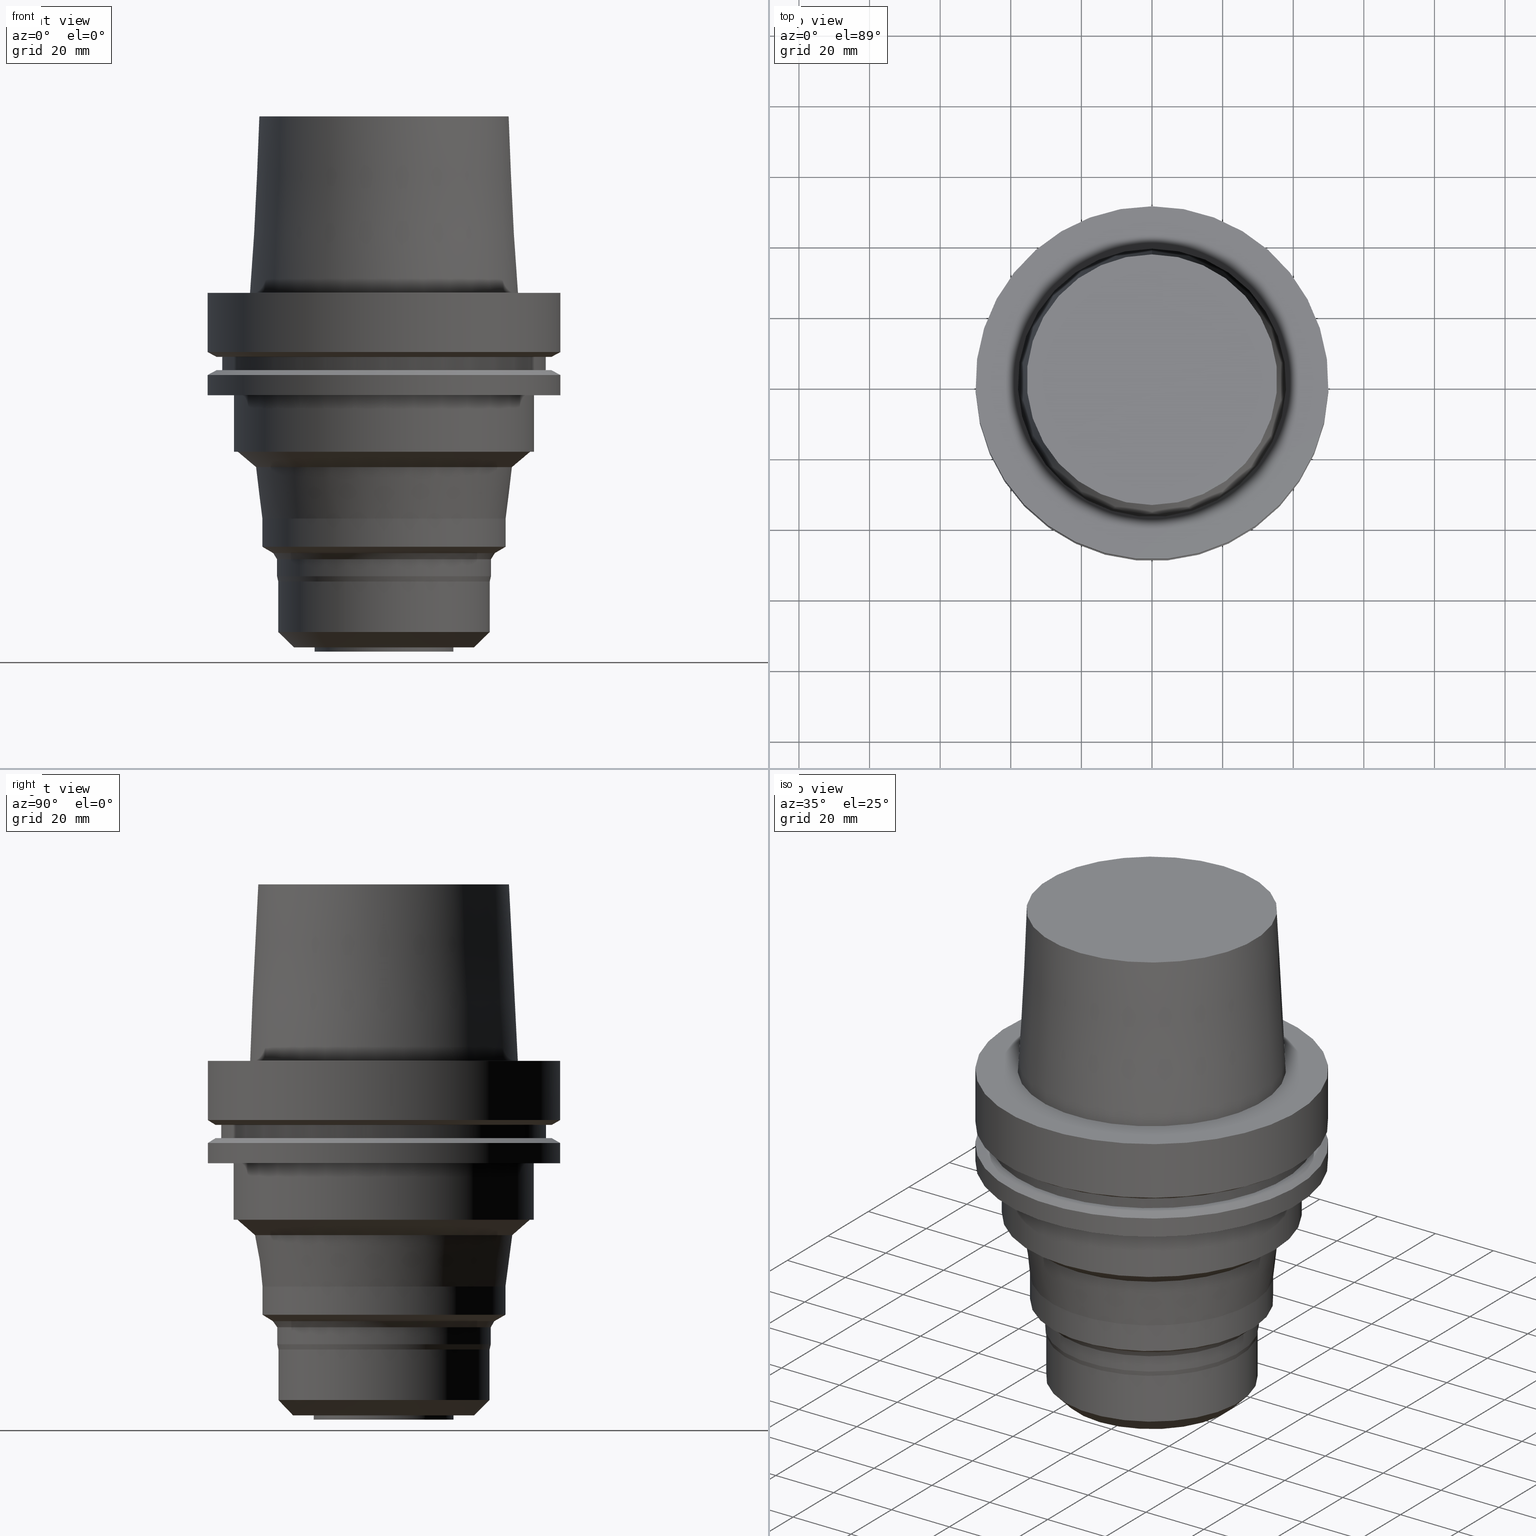
[diagram: canonical four-view strip — front | top / right | iso, engineering-drawing reading convention]
A machine part, canonical four-view strip (front | top / right | iso — engineering-drawing reading convention). The complete STEP part file that produces these views, byte-faithful:
ISO-10303-21;
HEADER;
FILE_DESCRIPTION((''),'1');
FILE_NAME('V:/90_\X2\53D65F9730C730FC30BF\X0\/00_\X2\6DE18DEF30C730FC30BF\X0\/ALL/HSK-BKUS\X2\52A05DE556F3\X0\_201801/HSK-A100-MEGADPG/HSK-A100-MEGA.750DPG-4.stp','2018-02-01T05:03:22',(''),(''),'Spatial Interop R21 SP3','Kubotek KeyCreator 2011 V10.0.2 (22737)',' ');
FILE_SCHEMA(('automotive_design'));
ENDSEC;
DATA;
#1=MECHANICAL_DESIGN_GEOMETRIC_PRESENTATION_REPRESENTATION(' ',(#10,#11,#12,#13,#14,#15,#16,#17,#18,#19,#20,#21,#22,#23,#24,#25,#26,#27,#28,#29,#30,#31,#32,#33,#34,#35,#36,#37,#38,#39,#40,#41,#42,#43,#44,#45,#46,#47,#48,#49,#50,#51,#52,#53,#54,#55,#56,#57,#58,#59),#6);
#2=PRODUCT_DEFINITION_CONTEXT('',#60,'design');
#3=APPLICATION_PROTOCOL_DEFINITION('INTERNATIONAL STANDARD','automotive_design',1994,#60);
#4=PRODUCT_CATEGORY_RELATIONSHIP('NONE','NONE',#61,#62);
#5=SHAPE_DEFINITION_REPRESENTATION(#63,#64);
#6= (GEOMETRIC_REPRESENTATION_CONTEXT(3)GLOBAL_UNCERTAINTY_ASSIGNED_CONTEXT((#67))GLOBAL_UNIT_ASSIGNED_CONTEXT((#69,#70,#71))REPRESENTATION_CONTEXT('NONE','WORKSPACE'));
#10=STYLED_ITEM('',(#73,#74),#75);
#11=STYLED_ITEM('',(#76,#77),#78);
#12=STYLED_ITEM('',(#79),#80);
#13=STYLED_ITEM('',(#81),#82);
#14=STYLED_ITEM('',(#83,#84),#85);
#15=STYLED_ITEM('',(#86,#87),#88);
#16=STYLED_ITEM('',(#89,#90),#91);
#17=STYLED_ITEM('',(#92),#93);
#18=STYLED_ITEM('',(#94,#95),#96);
#19=STYLED_ITEM('',(#97),#98);
#20=STYLED_ITEM('',(#99,#100),#101);
#21=STYLED_ITEM('',(#102,#103),#104);
#22=STYLED_ITEM('',(#105),#106);
#23=STYLED_ITEM('',(#107),#108);
#24=STYLED_ITEM('',(#109),#110);
#25=STYLED_ITEM('',(#111,#112),#113);
#26=STYLED_ITEM('',(#114),#115);
#27=STYLED_ITEM('',(#116,#117),#118);
#28=STYLED_ITEM('',(#119,#120),#121);
#29=STYLED_ITEM('',(#122,#123),#124);
#30=STYLED_ITEM('',(#125,#126),#127);
#31=STYLED_ITEM('',(#128,#129),#130);
#32=STYLED_ITEM('',(#131,#132),#133);
#33=STYLED_ITEM('',(#134),#135);
#34=STYLED_ITEM('',(#136,#137),#138);
#35=STYLED_ITEM('',(#139,#140),#141);
#36=STYLED_ITEM('',(#142),#143);
#37=STYLED_ITEM('',(#144),#145);
#38=STYLED_ITEM('',(#146),#147);
#39=STYLED_ITEM('',(#148,#149),#150);
#40=STYLED_ITEM('',(#151),#152);
#41=STYLED_ITEM('',(#153,#154),#155);
#42=STYLED_ITEM('',(#156),#157);
#43=STYLED_ITEM('',(#158),#159);
#44=STYLED_ITEM('',(#160),#161);
#45=STYLED_ITEM('',(#162),#163);
#46=STYLED_ITEM('',(#164),#165);
#47=STYLED_ITEM('',(#166),#167);
#48=STYLED_ITEM('',(#168,#169),#170);
#49=STYLED_ITEM('',(#171,#172),#173);
#50=STYLED_ITEM('',(#174,#175),#176);
#51=STYLED_ITEM('',(#177),#178);
#52=STYLED_ITEM('',(#179,#180),#181);
#53=STYLED_ITEM('',(#182),#183);
#54=STYLED_ITEM('',(#184),#185);
#55=STYLED_ITEM('',(#186,#187),#188);
#56=STYLED_ITEM('',(#189),#190);
#57=STYLED_ITEM('',(#191,#192),#193);
#58=STYLED_ITEM('',(#194),#195);
#59=STYLED_ITEM('',(#196,#197),#198);
#60=APPLICATION_CONTEXT(' ');
#61=PRODUCT_CATEGORY('part','NONE');
#62=PRODUCT_RELATED_PRODUCT_CATEGORY('detail',' ',(#199));
#63=PRODUCT_DEFINITION_SHAPE('NONE','NONE',#200);
#64=ADVANCED_BREP_SHAPE_REPRESENTATION('Unnamed[1]',(#193,#201),#6);
#67=UNCERTAINTY_MEASURE_WITH_UNIT(LENGTH_MEASURE(1.0E-006),#69,'','');
#69= (CONVERSION_BASED_UNIT('MILLIMETRE',#204)LENGTH_UNIT()NAMED_UNIT(#207));
#70= (NAMED_UNIT(#209)PLANE_ANGLE_UNIT()SI_UNIT($,.RADIAN.));
#71= (NAMED_UNIT(#209)SOLID_ANGLE_UNIT()SI_UNIT($,.STERADIAN.));
#73=PRESENTATION_STYLE_ASSIGNMENT((#215));
#74=PRESENTATION_STYLE_ASSIGNMENT((#216));
#75=ADVANCED_FACE('Unnamed[1]',(#217,#218),#219,.T.);
#76=PRESENTATION_STYLE_ASSIGNMENT((#220));
#77=PRESENTATION_STYLE_ASSIGNMENT((#221));
#78=ADVANCED_FACE('Unnamed[1]',(#222,#223),#224,.T.);
#79=PRESENTATION_STYLE_ASSIGNMENT((#225));
#80=EDGE_CURVE('Unnamed[1]',#226,#226,#227,.T.);
#81=PRESENTATION_STYLE_ASSIGNMENT((#228));
#82=EDGE_CURVE('Unnamed[1]',#229,#229,#230,.T.);
#83=PRESENTATION_STYLE_ASSIGNMENT((#231));
#84=PRESENTATION_STYLE_ASSIGNMENT((#232));
#85=ADVANCED_FACE('Unnamed[1]',(#233,#234),#235,.T.);
#86=PRESENTATION_STYLE_ASSIGNMENT((#236));
#87=PRESENTATION_STYLE_ASSIGNMENT((#237));
#88=ADVANCED_FACE('Unnamed[1]',(#238,#239),#240,.T.);
#89=PRESENTATION_STYLE_ASSIGNMENT((#241));
#90=PRESENTATION_STYLE_ASSIGNMENT((#242));
#91=ADVANCED_FACE('Unnamed[1]',(#243,#244),#245,.T.);
#92=PRESENTATION_STYLE_ASSIGNMENT((#246));
#93=EDGE_CURVE('Unnamed[1]',#247,#247,#248,.T.);
#94=PRESENTATION_STYLE_ASSIGNMENT((#249));
#95=PRESENTATION_STYLE_ASSIGNMENT((#250));
#96=ADVANCED_FACE('Unnamed[1]',(#251,#252),#253,.T.);
#97=PRESENTATION_STYLE_ASSIGNMENT((#254));
#98=EDGE_CURVE('Unnamed[1]',#255,#255,#256,.T.);
#99=PRESENTATION_STYLE_ASSIGNMENT((#257));
#100=PRESENTATION_STYLE_ASSIGNMENT((#258));
#101=ADVANCED_FACE('Unnamed[1]',(#259,#260),#261,.T.);
#102=PRESENTATION_STYLE_ASSIGNMENT((#262));
#103=PRESENTATION_STYLE_ASSIGNMENT((#263));
#104=ADVANCED_FACE('Unnamed[1]',(#264,#265),#266,.T.);
#105=PRESENTATION_STYLE_ASSIGNMENT((#267));
#106=EDGE_CURVE('Unnamed[1]',#268,#268,#269,.T.);
#107=PRESENTATION_STYLE_ASSIGNMENT((#270));
#108=EDGE_CURVE('Unnamed[1]',#271,#271,#272,.T.);
#109=PRESENTATION_STYLE_ASSIGNMENT((#273));
#110=EDGE_CURVE('Unnamed[1]',#274,#274,#275,.T.);
#111=PRESENTATION_STYLE_ASSIGNMENT((#276));
#112=PRESENTATION_STYLE_ASSIGNMENT((#277));
#113=ADVANCED_FACE('Unnamed[1]',(#278,#279),#280,.T.);
#114=PRESENTATION_STYLE_ASSIGNMENT((#281));
#115=EDGE_CURVE('Unnamed[1]',#282,#282,#283,.T.);
#116=PRESENTATION_STYLE_ASSIGNMENT((#284));
#117=PRESENTATION_STYLE_ASSIGNMENT((#285));
#118=ADVANCED_FACE('Unnamed[1]',(#286,#287),#288,.T.);
#119=PRESENTATION_STYLE_ASSIGNMENT((#289));
#120=PRESENTATION_STYLE_ASSIGNMENT((#290));
#121=ADVANCED_FACE('Unnamed[1]',(#291,#292),#293,.T.);
#122=PRESENTATION_STYLE_ASSIGNMENT((#294));
#123=PRESENTATION_STYLE_ASSIGNMENT((#295));
#124=ADVANCED_FACE('Unnamed[1]',(#296,#297),#298,.T.);
#125=PRESENTATION_STYLE_ASSIGNMENT((#299));
#126=PRESENTATION_STYLE_ASSIGNMENT((#300));
#127=ADVANCED_FACE('Unnamed[1]',(#301),#302,.T.);
#128=PRESENTATION_STYLE_ASSIGNMENT((#303));
#129=PRESENTATION_STYLE_ASSIGNMENT((#304));
#130=ADVANCED_FACE('Unnamed[1]',(#305,#306),#307,.T.);
#131=PRESENTATION_STYLE_ASSIGNMENT((#308));
#132=PRESENTATION_STYLE_ASSIGNMENT((#309));
#133=ADVANCED_FACE('Unnamed[1]',(#310,#311),#312,.T.);
#134=PRESENTATION_STYLE_ASSIGNMENT((#313));
#135=EDGE_CURVE('Unnamed[1]',#314,#314,#315,.T.);
#136=PRESENTATION_STYLE_ASSIGNMENT((#316));
#137=PRESENTATION_STYLE_ASSIGNMENT((#317));
#138=ADVANCED_FACE('Unnamed[1]',(#318,#319),#320,.T.);
#139=PRESENTATION_STYLE_ASSIGNMENT((#321));
#140=PRESENTATION_STYLE_ASSIGNMENT((#322));
#141=ADVANCED_FACE('Unnamed[1]',(#323,#324),#325,.T.);
#142=PRESENTATION_STYLE_ASSIGNMENT((#326));
#143=EDGE_CURVE('Unnamed[1]',#327,#327,#328,.T.);
#144=PRESENTATION_STYLE_ASSIGNMENT((#329));
#145=EDGE_CURVE('Unnamed[1]',#330,#330,#331,.T.);
#146=PRESENTATION_STYLE_ASSIGNMENT((#332));
#147=EDGE_CURVE('Unnamed[1]',#333,#333,#334,.T.);
#148=PRESENTATION_STYLE_ASSIGNMENT((#335));
#149=PRESENTATION_STYLE_ASSIGNMENT((#336));
#150=ADVANCED_FACE('Unnamed[1]',(#337,#338),#339,.T.);
#151=PRESENTATION_STYLE_ASSIGNMENT((#340));
#152=EDGE_CURVE('Unnamed[1]',#341,#341,#342,.T.);
#153=PRESENTATION_STYLE_ASSIGNMENT((#343));
#154=PRESENTATION_STYLE_ASSIGNMENT((#344));
#155=ADVANCED_FACE('Unnamed[1]',(#345,#346),#347,.T.);
#156=PRESENTATION_STYLE_ASSIGNMENT((#348));
#157=EDGE_CURVE('Unnamed[1]',#349,#349,#350,.T.);
#158=PRESENTATION_STYLE_ASSIGNMENT((#351));
#159=EDGE_CURVE('Unnamed[1]',#352,#352,#353,.T.);
#160=PRESENTATION_STYLE_ASSIGNMENT((#354));
#161=EDGE_CURVE('Unnamed[1]',#355,#355,#356,.T.);
#162=PRESENTATION_STYLE_ASSIGNMENT((#357));
#163=EDGE_CURVE('Unnamed[1]',#358,#358,#359,.T.);
#164=PRESENTATION_STYLE_ASSIGNMENT((#360));
#165=EDGE_CURVE('Unnamed[1]',#361,#361,#362,.T.);
#166=PRESENTATION_STYLE_ASSIGNMENT((#363));
#167=EDGE_CURVE('Unnamed[1]',#364,#364,#365,.T.);
#168=PRESENTATION_STYLE_ASSIGNMENT((#366));
#169=PRESENTATION_STYLE_ASSIGNMENT((#367));
#170=ADVANCED_FACE('Unnamed[1]',(#368,#369),#370,.T.);
#171=PRESENTATION_STYLE_ASSIGNMENT((#371));
#172=PRESENTATION_STYLE_ASSIGNMENT((#372));
#173=ADVANCED_FACE('Unnamed[1]',(#373,#374),#375,.T.);
#174=PRESENTATION_STYLE_ASSIGNMENT((#376));
#175=PRESENTATION_STYLE_ASSIGNMENT((#377));
#176=ADVANCED_FACE('Unnamed[1]',(#378,#379),#380,.T.);
#177=PRESENTATION_STYLE_ASSIGNMENT((#381));
#178=EDGE_CURVE('Unnamed[1]',#382,#382,#383,.T.);
#179=PRESENTATION_STYLE_ASSIGNMENT((#384));
#180=PRESENTATION_STYLE_ASSIGNMENT((#385));
#181=ADVANCED_FACE('Unnamed[1]',(#386),#387,.T.);
#182=PRESENTATION_STYLE_ASSIGNMENT((#388));
#183=EDGE_CURVE('Unnamed[1]',#389,#389,#390,.T.);
#184=PRESENTATION_STYLE_ASSIGNMENT((#391));
#185=EDGE_CURVE('Unnamed[1]',#392,#392,#393,.T.);
#186=PRESENTATION_STYLE_ASSIGNMENT((#394));
#187=PRESENTATION_STYLE_ASSIGNMENT((#395));
#188=ADVANCED_FACE('Unnamed[1]',(#396,#397),#398,.T.);
#189=PRESENTATION_STYLE_ASSIGNMENT((#399));
#190=EDGE_CURVE('Unnamed[1]',#400,#400,#401,.T.);
#191=PRESENTATION_STYLE_ASSIGNMENT((#402));
#192=PRESENTATION_STYLE_ASSIGNMENT((#403));
#193=MANIFOLD_SOLID_BREP('Unnamed[1]',#404);
#194=PRESENTATION_STYLE_ASSIGNMENT((#405));
#195=EDGE_CURVE('Unnamed[1]',#406,#406,#407,.T.);
#196=PRESENTATION_STYLE_ASSIGNMENT((#408));
#197=PRESENTATION_STYLE_ASSIGNMENT((#409));
#198=ADVANCED_FACE('Unnamed[1]',(#410,#411),#412,.T.);
#199=PRODUCT('Unnamed[1]','Unnamed[1]','PART-Unnamed[1]-DESC',(#413));
#200=PRODUCT_DEFINITION('NONE','NONE',#414,#2);
#201=AXIS2_PLACEMENT_3D('',#415,#416,#417);
#204=LENGTH_MEASURE_WITH_UNIT(LENGTH_MEASURE(1.0),#418);
#207=DIMENSIONAL_EXPONENTS(1.0,0.0,0.0,0.0,0.0,0.0,0.0);
#209=DIMENSIONAL_EXPONENTS(0.0,0.0,0.0,0.0,0.0,0.0,0.0);
#215=SURFACE_STYLE_USAGE(.BOTH.,#419);
#216=CURVE_STYLE('',#420,POSITIVE_LENGTH_MEASURE(1000.0),#421);
#217=FACE_OUTER_BOUND('',#422,.T.);
#218=FACE_BOUND('',#423,.T.);
#219=PLANE('',#424);
#220=SURFACE_STYLE_USAGE(.BOTH.,#425);
#221=CURVE_STYLE('',#426,POSITIVE_LENGTH_MEASURE(1000.0),#427);
#222=FACE_BOUND('',#428,.T.);
#223=FACE_BOUND('',#429,.T.);
#224=CONICAL_SURFACE('',#430,32.925,1.04719755119633);
#225=CURVE_STYLE('',#431,POSITIVE_LENGTH_MEASURE(1000.0),#432);
#226=VERTEX_POINT('',#433);
#227=CIRCLE('',#434,30.0);
#228=CURVE_STYLE('',#435,POSITIVE_LENGTH_MEASURE(1000.0),#436);
#229=VERTEX_POINT('',#437);
#230=CIRCLE('',#438,36.4253524534451);
#231=SURFACE_STYLE_USAGE(.BOTH.,#439);
#232=CURVE_STYLE('',#440,POSITIVE_LENGTH_MEASURE(1000.0),#441);
#233=FACE_BOUND('',#442,.T.);
#234=FACE_OUTER_BOUND('',#443,.T.);
#235=PLANE('',#444);
#236=SURFACE_STYLE_USAGE(.BOTH.,#445);
#237=CURVE_STYLE('',#446,POSITIVE_LENGTH_MEASURE(1000.0),#447);
#238=FACE_BOUND('',#448,.T.);
#239=FACE_BOUND('',#449,.T.);
#240=CONICAL_SURFACE('',#450,36.7499999999998,0.0499583957219389);
#241=SURFACE_STYLE_USAGE(.BOTH.,#451);
#242=CURVE_STYLE('',#452,POSITIVE_LENGTH_MEASURE(1000.0),#453);
#243=FACE_BOUND('',#454,.T.);
#244=FACE_BOUND('',#455,.T.);
#245=CONICAL_SURFACE('',#456,27.8275127018922,0.785398163397432);
#246=CURVE_STYLE('',#457,POSITIVE_LENGTH_MEASURE(1000.0),#458);
#247=VERTEX_POINT('',#459);
#248=CIRCLE('',#460,34.5);
#249=SURFACE_STYLE_USAGE(.BOTH.,#461);
#250=CURVE_STYLE('',#462,POSITIVE_LENGTH_MEASURE(1000.0),#463);
#251=FACE_BOUND('',#464,.T.);
#252=FACE_BOUND('',#465,.T.);
#253=CONICAL_SURFACE('',#466,48.8112976320959,1.04719755119659);
#254=CURVE_STYLE('',#467,POSITIVE_LENGTH_MEASURE(1000.0),#468);
#255=VERTEX_POINT('',#469);
#256=CIRCLE('',#470,30.3500000000004);
#257=SURFACE_STYLE_USAGE(.BOTH.,#471);
#258=CURVE_STYLE('',#472,POSITIVE_LENGTH_MEASURE(1000.0),#473);
#259=FACE_BOUND('',#474,.T.);
#260=FACE_BOUND('',#475,.T.);
#261=CYLINDRICAL_SURFACE('',#476,50.0000000000001);
#262=SURFACE_STYLE_USAGE(.BOTH.,#477);
#263=CURVE_STYLE('',#478,POSITIVE_LENGTH_MEASURE(1000.0),#479);
#264=FACE_BOUND('',#480,.T.);
#265=FACE_OUTER_BOUND('',#481,.T.);
#266=PLANE('',#482);
#267=CURVE_STYLE('',#483,POSITIVE_LENGTH_MEASURE(1000.0),#484);
#268=VERTEX_POINT('',#485);
#269=CIRCLE('',#486,50.0000000000001);
#270=CURVE_STYLE('',#487,POSITIVE_LENGTH_MEASURE(1000.0),#488);
#271=VERTEX_POINT('',#489);
#272=CIRCLE('',#490,19.7798076148762);
#273=CURVE_STYLE('',#491,POSITIVE_LENGTH_MEASURE(1000.0),#492);
#274=VERTEX_POINT('',#493);
#275=CIRCLE('',#494,35.4999999999999);
#276=SURFACE_STYLE_USAGE(.BOTH.,#495);
#277=CURVE_STYLE('',#496,POSITIVE_LENGTH_MEASURE(1000.0),#497);
#278=FACE_BOUND('',#498,.T.);
#279=FACE_BOUND('',#499,.T.);
#280=CYLINDRICAL_SURFACE('',#500,30.3500000000004);
#281=CURVE_STYLE('',#501,POSITIVE_LENGTH_MEASURE(1000.0),#502);
#282=VERTEX_POINT('',#503);
#283=CIRCLE('',#504,42.4999999999988);
#284=SURFACE_STYLE_USAGE(.BOTH.,#505);
#285=CURVE_STYLE('',#506,POSITIVE_LENGTH_MEASURE(1000.0),#507);
#286=FACE_BOUND('',#508,.T.);
#287=FACE_BOUND('',#509,.T.);
#288=CYLINDRICAL_SURFACE('',#510,42.4999999999991);
#289=SURFACE_STYLE_USAGE(.BOTH.,#511);
#290=CURVE_STYLE('',#512,POSITIVE_LENGTH_MEASURE(1000.0),#513);
#291=FACE_BOUND('',#514,.T.);
#292=FACE_BOUND('',#515,.T.);
#293=CYLINDRICAL_SURFACE('',#516,34.5);
#294=SURFACE_STYLE_USAGE(.BOTH.,#517);
#295=CURVE_STYLE('',#518,POSITIVE_LENGTH_MEASURE(1000.0),#519);
#296=FACE_BOUND('',#520,.T.);
#297=FACE_BOUND('',#521,.T.);
#298=CONICAL_SURFACE('',#522,30.8500000000002,0.523598775598161);
#299=SURFACE_STYLE_USAGE(.BOTH.,#523);
#300=CURVE_STYLE('',#524,POSITIVE_LENGTH_MEASURE(1000.0),#525);
#301=FACE_OUTER_BOUND('',#526,.T.);
#302=PLANE('',#527);
#303=SURFACE_STYLE_USAGE(.BOTH.,#528);
#304=CURVE_STYLE('',#529,POSITIVE_LENGTH_MEASURE(1000.0),#530);
#305=FACE_BOUND('',#531,.T.);
#306=FACE_BOUND('',#532,.T.);
#307=CONICAL_SURFACE('',#533,35.4626762267225,0.131511671319672);
#308=SURFACE_STYLE_USAGE(.BOTH.,#534);
#309=CURVE_STYLE('',#535,POSITIVE_LENGTH_MEASURE(1000.0),#536);
#310=FACE_BOUND('',#537,.T.);
#311=FACE_BOUND('',#538,.T.);
#312=CONICAL_SURFACE('',#539,48.8112976320959,1.04719755119658);
#313=CURVE_STYLE('',#540,POSITIVE_LENGTH_MEASURE(1000.0),#541);
#314=VERTEX_POINT('',#542);
#315=CIRCLE('',#543,46.0000000000001);
#316=SURFACE_STYLE_USAGE(.BOTH.,#544);
#317=CURVE_STYLE('',#545,POSITIVE_LENGTH_MEASURE(1000.0),#546);
#318=FACE_BOUND('',#547,.T.);
#319=FACE_BOUND('',#548,.T.);
#320=CYLINDRICAL_SURFACE('',#549,30.0);
#321=SURFACE_STYLE_USAGE(.BOTH.,#550);
#322=CURVE_STYLE('',#551,POSITIVE_LENGTH_MEASURE(1000.0),#552);
#323=FACE_OUTER_BOUND('',#553,.T.);
#324=FACE_BOUND('',#554,.T.);
#325=PLANE('',#555);
#326=CURVE_STYLE('',#556,POSITIVE_LENGTH_MEASURE(1000.0),#557);
#327=VERTEX_POINT('',#558);
#328=CIRCLE('',#559,30.0);
#329=CURVE_STYLE('',#560,POSITIVE_LENGTH_MEASURE(1000.0),#561);
#330=VERTEX_POINT('',#562);
#331=CIRCLE('',#563,47.6225952641917);
#332=CURVE_STYLE('',#564,POSITIVE_LENGTH_MEASURE(1000.0),#565);
#333=VERTEX_POINT('',#566);
#334=CIRCLE('',#567,19.7798076148762);
#335=SURFACE_STYLE_USAGE(.BOTH.,#568);
#336=CURVE_STYLE('',#569,POSITIVE_LENGTH_MEASURE(1000.0),#570);
#337=FACE_BOUND('',#571,.T.);
#338=FACE_BOUND('',#572,.T.);
#339=CYLINDRICAL_SURFACE('',#573,19.7798076148762);
#340=CURVE_STYLE('',#574,POSITIVE_LENGTH_MEASURE(1000.0),#575);
#341=VERTEX_POINT('',#576);
#342=CIRCLE('',#577,50.0000000000001);
#343=SURFACE_STYLE_USAGE(.BOTH.,#578);
#344=CURVE_STYLE('',#579,POSITIVE_LENGTH_MEASURE(1000.0),#580);
#345=FACE_BOUND('',#581,.T.);
#346=FACE_BOUND('',#582,.T.);
#347=CONICAL_SURFACE('',#583,30.1750000000002,0.229231933277035);
#348=CURVE_STYLE('',#584,POSITIVE_LENGTH_MEASURE(1000.0),#585);
#349=VERTEX_POINT('',#586);
#350=CIRCLE('',#587,50.0000000000001);
#351=CURVE_STYLE('',#588,POSITIVE_LENGTH_MEASURE(1000.0),#589);
#352=VERTEX_POINT('',#590);
#353=CIRCLE('',#591,50.0000000000001);
#354=CURVE_STYLE('',#592,POSITIVE_LENGTH_MEASURE(1000.0),#593);
#355=VERTEX_POINT('',#594);
#356=CIRCLE('',#595,34.5);
#357=CURVE_STYLE('',#596,POSITIVE_LENGTH_MEASURE(1000.0),#597);
#358=VERTEX_POINT('',#598);
#359=CIRCLE('',#599,31.3499999999999);
#360=CURVE_STYLE('',#600,POSITIVE_LENGTH_MEASURE(1000.0),#601);
#361=VERTEX_POINT('',#602);
#362=CIRCLE('',#603,42.4999999999994);
#363=CURVE_STYLE('',#604,POSITIVE_LENGTH_MEASURE(1000.0),#605);
#364=VERTEX_POINT('',#606);
#365=CIRCLE('',#607,47.6225952641917);
#366=SURFACE_STYLE_USAGE(.BOTH.,#608);
#367=CURVE_STYLE('',#609,POSITIVE_LENGTH_MEASURE(1000.0),#610);
#368=FACE_BOUND('',#611,.T.);
#369=FACE_BOUND('',#612,.T.);
#370=CYLINDRICAL_SURFACE('',#613,50.0000000000001);
#371=SURFACE_STYLE_USAGE(.BOTH.,#614);
#372=CURVE_STYLE('',#615,POSITIVE_LENGTH_MEASURE(1000.0),#616);
#373=FACE_BOUND('',#617,.T.);
#374=FACE_BOUND('',#618,.T.);
#375=CYLINDRICAL_SURFACE('',#619,46.0000000000001);
#376=SURFACE_STYLE_USAGE(.BOTH.,#620);
#377=CURVE_STYLE('',#621,POSITIVE_LENGTH_MEASURE(1000.0),#622);
#378=FACE_BOUND('',#623,.T.);
#379=FACE_OUTER_BOUND('',#624,.T.);
#380=PLANE('',#625);
#381=CURVE_STYLE('',#626,POSITIVE_LENGTH_MEASURE(1000.0),#627);
#382=VERTEX_POINT('',#628);
#383=CIRCLE('',#629,46.0000000000001);
#384=SURFACE_STYLE_USAGE(.BOTH.,#630);
#385=CURVE_STYLE('',#631,POSITIVE_LENGTH_MEASURE(1000.0),#632);
#386=FACE_OUTER_BOUND('',#633,.T.);
#387=PLANE('',#634);
#388=CURVE_STYLE('',#635,POSITIVE_LENGTH_MEASURE(1000.0),#636);
#389=VERTEX_POINT('',#637);
#390=CIRCLE('',#638,41.3821764366465);
#391=CURVE_STYLE('',#639,POSITIVE_LENGTH_MEASURE(1000.0),#640);
#392=VERTEX_POINT('',#641);
#393=CIRCLE('',#642,30.3500000000004);
#394=SURFACE_STYLE_USAGE(.BOTH.,#643);
#395=CURVE_STYLE('',#644,POSITIVE_LENGTH_MEASURE(1000.0),#645);
#396=FACE_BOUND('',#646,.T.);
#397=FACE_OUTER_BOUND('',#647,.T.);
#398=PLANE('',#648);
#399=CURVE_STYLE('',#649,POSITIVE_LENGTH_MEASURE(1000.0),#650);
#400=VERTEX_POINT('',#651);
#401=CIRCLE('',#652,25.6550254037845);
#402=SURFACE_STYLE_USAGE(.BOTH.,#653);
#403=CURVE_STYLE('',#654,POSITIVE_LENGTH_MEASURE(1000.0),#655);
#404=CLOSED_SHELL('',(#127,#88,#75,#170,#96,#85,#173,#141,#133,#101,#104,#118,#188,#198,#130,#121,#78,#124,#113,#155,#138,#91,#176,#150,#181));
#405=CURVE_STYLE('',#656,POSITIVE_LENGTH_MEASURE(1000.0),#657);
#406=VERTEX_POINT('',#658);
#407=CIRCLE('',#659,37.9999999999997);
#408=SURFACE_STYLE_USAGE(.BOTH.,#660);
#409=CURVE_STYLE('',#661,POSITIVE_LENGTH_MEASURE(1000.0),#662);
#410=FACE_BOUND('',#663,.T.);
#411=FACE_BOUND('',#664,.T.);
#412=CONICAL_SURFACE('',#665,38.9037644450458,0.851153999057289);
#413=PRODUCT_CONTEXT('',#60,'mechanical');
#414=PRODUCT_DEFINITION_FORMATION_WITH_SPECIFIED_SOURCE(' ','NONE',#199,.NOT_KNOWN.);
#415=CARTESIAN_POINT('',(0.0,0.0,0.0));
#416=DIRECTION('',(0.0,0.0,1.0));
#417=DIRECTION('',(1.0,0.0,0.0));
#418= (NAMED_UNIT(#207)LENGTH_UNIT()SI_UNIT(.MILLI.,.METRE.));
#419=SURFACE_SIDE_STYLE('',(#667));
#420=DRAUGHTING_PRE_DEFINED_CURVE_FONT('continuous');
#421=COLOUR_RGB('',0.0,1.0,0.0);
#422=EDGE_LOOP('',(#668));
#423=EDGE_LOOP('',(#669));
#424=AXIS2_PLACEMENT_3D('',#670,#671,#672);
#425=SURFACE_SIDE_STYLE('',(#673));
#426=DRAUGHTING_PRE_DEFINED_CURVE_FONT('continuous');
#427=COLOUR_RGB('',0.0,1.0,0.0);
#428=EDGE_LOOP('',(#674));
#429=EDGE_LOOP('',(#675));
#430=AXIS2_PLACEMENT_3D('',#676,#677,#678);
#431=DRAUGHTING_PRE_DEFINED_CURVE_FONT('continuous');
#432=COLOUR_RGB('',0.0,1.0,0.0);
#433=CARTESIAN_POINT('',(5.00549886215501E-015,30.0,-81.7460000000006));
#434=AXIS2_PLACEMENT_3D('',#679,#680,#681);
#435=DRAUGHTING_PRE_DEFINED_CURVE_FONT('continuous');
#436=COLOUR_RGB('',0.0,1.0,0.0);
#437=CARTESIAN_POINT('',(3.02146912336466E-015,36.4253524534451,-49.3443354519576));
#438=AXIS2_PLACEMENT_3D('',#682,#683,#684);
#439=SURFACE_SIDE_STYLE('',(#685));
#440=DRAUGHTING_PRE_DEFINED_CURVE_FONT('continuous');
#441=COLOUR_RGB('',0.0,1.0,0.0);
#442=EDGE_LOOP('',(#686));
#443=EDGE_LOOP('',(#687));
#444=AXIS2_PLACEMENT_3D('',#688,#689,#690);
#445=SURFACE_SIDE_STYLE('',(#691));
#446=DRAUGHTING_PRE_DEFINED_CURVE_FONT('continuous');
#447=COLOUR_RGB('',0.0,1.0,0.0);
#448=EDGE_LOOP('',(#692));
#449=EDGE_LOOP('',(#693));
#450=AXIS2_PLACEMENT_3D('',#694,#695,#696);
#451=SURFACE_SIDE_STYLE('',(#697));
#452=DRAUGHTING_PRE_DEFINED_CURVE_FONT('continuous');
#453=COLOUR_RGB('',0.0,1.0,0.0);
#454=EDGE_LOOP('',(#698));
#455=EDGE_LOOP('',(#699));
#456=AXIS2_PLACEMENT_3D('',#700,#701,#702);
#457=DRAUGHTING_PRE_DEFINED_CURVE_FONT('continuous');
#458=COLOUR_RGB('',0.0,1.0,0.0);
#459=CARTESIAN_POINT('',(3.91274652327585E-015,34.5,-63.900000000001));
#460=AXIS2_PLACEMENT_3D('',#703,#704,#705);
#461=SURFACE_SIDE_STYLE('',(#706));
#462=DRAUGHTING_PRE_DEFINED_CURVE_FONT('continuous');
#463=COLOUR_RGB('',0.0,1.0,0.0);
#464=EDGE_LOOP('',(#707));
#465=EDGE_LOOP('',(#708));
#466=AXIS2_PLACEMENT_3D('',#709,#710,#711);
#467=DRAUGHTING_PRE_DEFINED_CURVE_FONT('continuous');
#468=COLOUR_RGB('',0.0,1.0,0.0);
#469=CARTESIAN_POINT('',(4.62002316687333E-015,30.3500000000004,-75.450704155516));
#470=AXIS2_PLACEMENT_3D('',#712,#713,#714);
#471=SURFACE_SIDE_STYLE('',(#715));
#472=DRAUGHTING_PRE_DEFINED_CURVE_FONT('continuous');
#473=COLOUR_RGB('',0.0,1.0,0.0);
#474=EDGE_LOOP('',(#716));
#475=EDGE_LOOP('',(#717));
#476=AXIS2_PLACEMENT_3D('',#718,#719,#720);
#477=SURFACE_SIDE_STYLE('',(#721));
#478=DRAUGHTING_PRE_DEFINED_CURVE_FONT('continuous');
#479=COLOUR_RGB('',0.0,1.0,0.0);
#480=EDGE_LOOP('',(#722));
#481=EDGE_LOOP('',(#723));
#482=AXIS2_PLACEMENT_3D('',#724,#725,#726);
#483=DRAUGHTING_PRE_DEFINED_CURVE_FONT('continuous');
#484=COLOUR_RGB('',0.0,1.0,0.0);
#485=CARTESIAN_POINT('',(1.02578894188643E-015,50.0,-16.7524047358083));
#486=AXIS2_PLACEMENT_3D('',#727,#728,#729);
#487=DRAUGHTING_PRE_DEFINED_CURVE_FONT('continuous');
#488=COLOUR_RGB('',0.0,1.0,0.0);
#489=CARTESIAN_POINT('',(6.22120573966859E-015,19.7798076148763,-101.600000000001));
#490=AXIS2_PLACEMENT_3D('',#730,#731,#732);
#491=DRAUGHTING_PRE_DEFINED_CURVE_FONT('continuous');
#492=COLOUR_RGB('',0.0,1.0,0.0);
#493=CARTESIAN_POINT('',(-3.06161699786838E-015,35.4999999999998,50.0));
#494=AXIS2_PLACEMENT_3D('',#733,#734,#735);
#495=SURFACE_SIDE_STYLE('',(#736));
#496=DRAUGHTING_PRE_DEFINED_CURVE_FONT('continuous');
#497=COLOUR_RGB('',0.0,1.0,0.0);
#498=EDGE_LOOP('',(#737));
#499=EDGE_LOOP('',(#738));
#500=AXIS2_PLACEMENT_3D('',#739,#740,#741);
#501=DRAUGHTING_PRE_DEFINED_CURVE_FONT('continuous');
#502=COLOUR_RGB('',0.0,1.0,0.0);
#503=CARTESIAN_POINT('',(1.77573785876361E-015,42.4999999999987,-28.9999999999991));
#504=AXIS2_PLACEMENT_3D('',#742,#743,#744);
#505=SURFACE_SIDE_STYLE('',(#745));
#506=DRAUGHTING_PRE_DEFINED_CURVE_FONT('continuous');
#507=COLOUR_RGB('',0.0,1.0,0.0);
#508=EDGE_LOOP('',(#746));
#509=EDGE_LOOP('',(#747));
#510=AXIS2_PLACEMENT_3D('',#748,#749,#750);
#511=SURFACE_SIDE_STYLE('',(#751));
#512=DRAUGHTING_PRE_DEFINED_CURVE_FONT('continuous');
#513=COLOUR_RGB('',0.0,1.0,0.0);
#514=EDGE_LOOP('',(#752));
#515=EDGE_LOOP('',(#753));
#516=AXIS2_PLACEMENT_3D('',#754,#755,#756);
#517=SURFACE_SIDE_STYLE('',(#757));
#518=DRAUGHTING_PRE_DEFINED_CURVE_FONT('continuous');
#519=COLOUR_RGB('',0.0,1.0,0.0);
#520=EDGE_LOOP('',(#758));
#521=EDGE_LOOP('',(#759));
#522=AXIS2_PLACEMENT_3D('',#760,#761,#762);
#523=SURFACE_SIDE_STYLE('',(#763));
#524=DRAUGHTING_PRE_DEFINED_CURVE_FONT('continuous');
#525=COLOUR_RGB('',0.0,1.0,0.0);
#526=EDGE_LOOP('',(#764));
#527=AXIS2_PLACEMENT_3D('',#765,#766,#767);
#528=SURFACE_SIDE_STYLE('',(#768));
#529=DRAUGHTING_PRE_DEFINED_CURVE_FONT('continuous');
#530=COLOUR_RGB('',0.0,1.0,0.0);
#531=EDGE_LOOP('',(#769));
#532=EDGE_LOOP('',(#770));
#533=AXIS2_PLACEMENT_3D('',#771,#772,#773);
#534=SURFACE_SIDE_STYLE('',(#774));
#535=DRAUGHTING_PRE_DEFINED_CURVE_FONT('continuous');
#536=COLOUR_RGB('',0.0,1.0,0.0);
#537=EDGE_LOOP('',(#775));
#538=EDGE_LOOP('',(#776));
#539=AXIS2_PLACEMENT_3D('',#777,#778,#779);
#540=DRAUGHTING_PRE_DEFINED_CURVE_FONT('continuous');
#541=COLOUR_RGB('',0.0,1.0,0.0);
#542=CARTESIAN_POINT('',(1.10983616172727E-015,46.0,-18.1249999999997));
#543=AXIS2_PLACEMENT_3D('',#780,#781,#782);
#544=SURFACE_SIDE_STYLE('',(#783));
#545=DRAUGHTING_PRE_DEFINED_CURVE_FONT('continuous');
#546=COLOUR_RGB('',0.0,1.0,0.0);
#547=EDGE_LOOP('',(#784));
#548=EDGE_LOOP('',(#785));
#549=AXIS2_PLACEMENT_3D('',#786,#787,#788);
#550=SURFACE_SIDE_STYLE('',(#789));
#551=DRAUGHTING_PRE_DEFINED_CURVE_FONT('continuous');
#552=COLOUR_RGB('',0.0,1.0,0.0);
#553=EDGE_LOOP('',(#790));
#554=EDGE_LOOP('',(#791));
#555=AXIS2_PLACEMENT_3D('',#792,#793,#794);
#556=DRAUGHTING_PRE_DEFINED_CURVE_FONT('continuous');
#557=COLOUR_RGB('',0.0,1.0,0.0);
#558=CARTESIAN_POINT('',(5.88167397013809E-015,30.0,-96.055025403784));
#559=AXIS2_PLACEMENT_3D('',#795,#796,#797);
#560=DRAUGHTING_PRE_DEFINED_CURVE_FONT('continuous');
#561=COLOUR_RGB('',0.0,1.0,0.0);
#562=CARTESIAN_POINT('',(1.33945743656736E-015,47.6225952641917,-21.8749999999991));
#563=AXIS2_PLACEMENT_3D('',#798,#799,#800);
#564=DRAUGHTING_PRE_DEFINED_CURVE_FONT('continuous');
#565=COLOUR_RGB('',0.0,1.0,0.0);
#566=CARTESIAN_POINT('',(6.14772693171969E-015,19.7798076148763,-100.4));
#567=AXIS2_PLACEMENT_3D('',#801,#802,#803);
#568=SURFACE_SIDE_STYLE('',(#804));
#569=DRAUGHTING_PRE_DEFINED_CURVE_FONT('continuous');
#570=COLOUR_RGB('',0.0,1.0,0.0);
#571=EDGE_LOOP('',(#805));
#572=EDGE_LOOP('',(#806));
#573=AXIS2_PLACEMENT_3D('',#807,#808,#809);
#574=DRAUGHTING_PRE_DEFINED_CURVE_FONT('continuous');
#575=COLOUR_RGB('',0.0,1.0,0.0);
#576=CARTESIAN_POINT('',(-6.16297582203916E-031,50.0,6.12323399573677E-015));
#577=AXIS2_PLACEMENT_3D('',#810,#811,#812);
#578=SURFACE_SIDE_STYLE('',(#813));
#579=DRAUGHTING_PRE_DEFINED_CURVE_FONT('continuous');
#580=COLOUR_RGB('',0.0,1.0,0.0);
#581=EDGE_LOOP('',(#814));
#582=EDGE_LOOP('',(#815));
#583=AXIS2_PLACEMENT_3D('',#816,#817,#818);
#584=DRAUGHTING_PRE_DEFINED_CURVE_FONT('continuous');
#585=COLOUR_RGB('',0.0,1.0,0.0);
#586=CARTESIAN_POINT('',(1.77573785876361E-015,50.0,-28.9999999999991));
#587=AXIS2_PLACEMENT_3D('',#819,#820,#821);
#588=DRAUGHTING_PRE_DEFINED_CURVE_FONT('continuous');
#589=COLOUR_RGB('',0.0,1.0,0.0);
#590=CARTESIAN_POINT('',(1.42350465640822E-015,50.0,-23.2475952641907));
#591=AXIS2_PLACEMENT_3D('',#822,#823,#824);
#592=DRAUGHTING_PRE_DEFINED_CURVE_FONT('continuous');
#593=COLOUR_RGB('',0.0,1.0,0.0);
#594=CARTESIAN_POINT('',(4.40260524293466E-015,34.5,-71.8999999999988));
#595=AXIS2_PLACEMENT_3D('',#825,#826,#827);
#596=DRAUGHTING_PRE_DEFINED_CURVE_FONT('continuous');
#597=COLOUR_RGB('',0.0,1.0,0.0);
#598=CARTESIAN_POINT('',(4.51396564300085E-015,31.3499999999999,-73.7186533479474));
#599=AXIS2_PLACEMENT_3D('',#828,#829,#830);
#600=DRAUGHTING_PRE_DEFINED_CURVE_FONT('continuous');
#601=COLOUR_RGB('',0.0,1.0,0.0);
#602=CARTESIAN_POINT('',(2.75545529808156E-015,42.4999999999994,-45.0000000000002));
#603=AXIS2_PLACEMENT_3D('',#831,#832,#833);
#604=DRAUGHTING_PRE_DEFINED_CURVE_FONT('continuous');
#605=COLOUR_RGB('',0.0,1.0,0.0);
#606=CARTESIAN_POINT('',(1.10983616172729E-015,47.6225952641917,-18.125));
#607=AXIS2_PLACEMENT_3D('',#834,#835,#836);
#608=SURFACE_SIDE_STYLE('',(#837));
#609=DRAUGHTING_PRE_DEFINED_CURVE_FONT('continuous');
#610=COLOUR_RGB('',0.0,1.0,0.0);
#611=EDGE_LOOP('',(#838));
#612=EDGE_LOOP('',(#839));
#613=AXIS2_PLACEMENT_3D('',#840,#841,#842);
#614=SURFACE_SIDE_STYLE('',(#843));
#615=DRAUGHTING_PRE_DEFINED_CURVE_FONT('continuous');
#616=COLOUR_RGB('',0.0,1.0,0.0);
#617=EDGE_LOOP('',(#844));
#618=EDGE_LOOP('',(#845));
#619=AXIS2_PLACEMENT_3D('',#846,#847,#848);
#620=SURFACE_SIDE_STYLE('',(#849));
#621=DRAUGHTING_PRE_DEFINED_CURVE_FONT('continuous');
#622=COLOUR_RGB('',0.0,1.0,0.0);
#623=EDGE_LOOP('',(#850));
#624=EDGE_LOOP('',(#851));
#625=AXIS2_PLACEMENT_3D('',#852,#853,#854);
#626=DRAUGHTING_PRE_DEFINED_CURVE_FONT('continuous');
#627=COLOUR_RGB('',0.0,1.0,0.0);
#628=CARTESIAN_POINT('',(1.33945743656734E-015,46.0,-21.8749999999988));
#629=AXIS2_PLACEMENT_3D('',#855,#856,#857);
#630=SURFACE_SIDE_STYLE('',(#858));
#631=DRAUGHTING_PRE_DEFINED_CURVE_FONT('continuous');
#632=COLOUR_RGB('',0.0,1.0,0.0);
#633=EDGE_LOOP('',(#859));
#634=AXIS2_PLACEMENT_3D('',#860,#861,#862);
#635=DRAUGHTING_PRE_DEFINED_CURVE_FONT('continuous');
#636=COLOUR_RGB('',0.0,1.0,0.0);
#637=CARTESIAN_POINT('',(2.75545529808156E-015,41.3821764366465,-45.0000000000002));
#638=AXIS2_PLACEMENT_3D('',#863,#864,#865);
#639=DRAUGHTING_PRE_DEFINED_CURVE_FONT('continuous');
#640=COLOUR_RGB('',0.0,1.0,0.0);
#641=CARTESIAN_POINT('',(4.91365035221888E-015,30.3500000000004,-80.2459999999993));
#642=AXIS2_PLACEMENT_3D('',#866,#867,#868);
#643=SURFACE_SIDE_STYLE('',(#869));
#644=DRAUGHTING_PRE_DEFINED_CURVE_FONT('continuous');
#645=COLOUR_RGB('',0.0,1.0,0.0);
#646=EDGE_LOOP('',(#870));
#647=EDGE_LOOP('',(#871));
#648=AXIS2_PLACEMENT_3D('',#872,#873,#874);
#649=DRAUGHTING_PRE_DEFINED_CURVE_FONT('continuous');
#650=COLOUR_RGB('',0.0,1.0,0.0);
#651=CARTESIAN_POINT('',(6.14772693171969E-015,25.6550254037845,-100.4));
#652=AXIS2_PLACEMENT_3D('',#875,#876,#877);
#653=SURFACE_SIDE_STYLE('',(#878));
#654=DRAUGHTING_PRE_DEFINED_CURVE_FONT('continuous');
#655=COLOUR_RGB('',0.0,1.0,0.0);
#656=DRAUGHTING_PRE_DEFINED_CURVE_FONT('continuous');
#657=COLOUR_RGB('',0.0,1.0,0.0);
#658=CARTESIAN_POINT('',(-4.68386162474972E-031,37.9999999999997,4.6536578367599E-015));
#659=AXIS2_PLACEMENT_3D('',#879,#880,#881);
#660=SURFACE_SIDE_STYLE('',(#882));
#661=DRAUGHTING_PRE_DEFINED_CURVE_FONT('continuous');
#662=COLOUR_RGB('',0.0,1.0,0.0);
#663=EDGE_LOOP('',(#883));
#664=EDGE_LOOP('',(#884));
#665=AXIS2_PLACEMENT_3D('',#885,#886,#887);
#667=SURFACE_STYLE_FILL_AREA(#888);
#668=ORIENTED_EDGE('',*,*,#152,.F.);
#669=ORIENTED_EDGE('',*,*,#195,.T.);
#670=CARTESIAN_POINT('',(-5.42341872339444E-031,43.9999999999998,5.38844591624833E-015));
#671=DIRECTION('',(-6.12323399573677E-017,-1.22464679914735E-016,1.0));
#672=DIRECTION('',(1.23259516440783E-032,-1.0,-1.22464679914735E-016));
#673=SURFACE_STYLE_FILL_AREA(#889);
#674=ORIENTED_EDGE('',*,*,#163,.F.);
#675=ORIENTED_EDGE('',*,*,#161,.T.);
#676=CARTESIAN_POINT('',(4.45828544296776E-015,-5.68112313476959E-015,-72.8093266739731));
#677=DIRECTION('',(-6.12323399573677E-017,-5.75940563219809E-016,1.0));
#678=DIRECTION('',(-4.00933410930822E-032,1.0,5.75940563219809E-016));
#679=CARTESIAN_POINT('',(5.00549886215501E-015,-5.3413046606587E-016,-81.7460000000006));
#680=DIRECTION('',(6.12323399573676E-017,5.75940563219809E-016,-1.0));
#681=DIRECTION('',(-4.00933410930822E-032,1.0,5.75940563219809E-016));
#682=CARTESIAN_POINT('',(3.02146912336466E-015,-1.91955633951251E-014,-49.3443354519576));
#683=DIRECTION('',(6.12323399573677E-017,5.75940563219809E-016,-1.0));
#684=DIRECTION('',(-4.00933410930822E-032,1.0,5.75940563219809E-016));
#685=SURFACE_STYLE_FILL_AREA(#890);
#686=ORIENTED_EDGE('',*,*,#135,.F.);
#687=ORIENTED_EDGE('',*,*,#167,.T.);
#688=CARTESIAN_POINT('',(1.10983616172728E-015,46.8112976320959,-18.1249999999998));
#689=DIRECTION('',(6.12323399573677E-017,-1.8379767585366E-013,-1.0));
#690=DIRECTION('',(1.12495346185146E-029,1.0,-1.8379767585366E-013));
#691=SURFACE_STYLE_FILL_AREA(#891);
#692=ORIENTED_EDGE('',*,*,#195,.F.);
#693=ORIENTED_EDGE('',*,*,#110,.T.);
#694=CARTESIAN_POINT('',(-1.53080849893419E-015,-6.20134818275279E-014,25.0));
#695=DIRECTION('',(6.12323399573676E-017,5.75940563219809E-016,-1.0));
#696=DIRECTION('',(-4.00933410930822E-032,1.0,5.75940563219809E-016));
#697=SURFACE_STYLE_FILL_AREA(#892);
#698=ORIENTED_EDGE('',*,*,#190,.F.);
#699=ORIENTED_EDGE('',*,*,#143,.T.);
#700=CARTESIAN_POINT('',(6.01470045092889E-015,8.9582412421758E-015,-98.2275127018919));
#701=DIRECTION('',(-6.12323399573677E-017,-5.75940563219809E-016,1.0));
#702=DIRECTION('',(-4.00933410930822E-032,1.0,5.75940563219809E-016));
#703=CARTESIAN_POINT('',(3.91274652327585E-015,-1.08123657572864E-014,-63.900000000001));
#704=DIRECTION('',(6.12323399573676E-017,5.75940563219809E-016,-1.0));
#705=DIRECTION('',(-4.00933410930822E-032,1.0,5.75940563219809E-016));
#706=SURFACE_STYLE_FILL_AREA(#893);
#707=ORIENTED_EDGE('',*,*,#167,.F.);
#708=ORIENTED_EDGE('',*,*,#106,.T.);
#709=CARTESIAN_POINT('',(1.06781255180686E-015,-3.75713116834394E-014,-17.4387023679042));
#710=DIRECTION('',(-6.12323399573677E-017,-5.75940563219809E-016,1.0));
#711=DIRECTION('',(-4.00933410930822E-032,1.0,5.75940563219809E-016));
#712=CARTESIAN_POINT('',(4.62002316687333E-015,-4.15984670037367E-015,-75.450704155516));
#713=DIRECTION('',(6.12323399573677E-017,5.75940563219809E-016,-1.0));
#714=DIRECTION('',(-4.00933410930822E-032,1.0,5.75940563219809E-016));
#715=SURFACE_STYLE_FILL_AREA(#894);
#716=ORIENTED_EDGE('',*,*,#157,.F.);
#717=ORIENTED_EDGE('',*,*,#159,.T.);
#718=CARTESIAN_POINT('',(1.59962125758591E-015,-3.25692130253636E-014,-26.1237976320949));
#719=DIRECTION('',(6.12323399573677E-017,5.75940563219809E-016,-1.0));
#720=DIRECTION('',(-4.00933410930822E-032,1.0,5.75940563219809E-016));
#721=SURFACE_STYLE_FILL_AREA(#895);
#722=ORIENTED_EDGE('',*,*,#115,.F.);
#723=ORIENTED_EDGE('',*,*,#157,.T.);
#724=CARTESIAN_POINT('',(1.77573785876361E-015,46.2499999999994,-28.9999999999991));
#725=DIRECTION('',(6.12323399573677E-017,1.22464679914735E-016,-1.0));
#726=DIRECTION('',(-1.23259516440783E-032,1.0,1.22464679914735E-016));
#727=CARTESIAN_POINT('',(1.02578894188643E-015,-3.79665783282051E-014,-16.7524047358084));
#728=DIRECTION('',(6.12323399573677E-017,5.75940563219809E-016,-1.0));
#729=DIRECTION('',(-4.00933410930822E-032,1.0,5.75940563219809E-016));
#730=CARTESIAN_POINT('',(6.22120573966859E-015,1.09005934761002E-014,-101.600000000001));
#731=DIRECTION('',(6.12323399573677E-017,5.75940563219809E-016,-1.0));
#732=DIRECTION('',(-4.00933410930822E-032,1.0,5.75940563219809E-016));
#733=CARTESIAN_POINT('',(-3.06161699786838E-015,-7.64119959080231E-014,50.0));
#734=DIRECTION('',(6.12323399573677E-017,5.75940563219809E-016,-1.0));
#735=DIRECTION('',(-4.00933410930822E-032,1.0,5.75940563219809E-016));
#736=SURFACE_STYLE_FILL_AREA(#896);
#737=ORIENTED_EDGE('',*,*,#185,.F.);
#738=ORIENTED_EDGE('',*,*,#98,.T.);
#739=CARTESIAN_POINT('',(4.76683675954611E-015,-2.77894400563501E-015,-77.8483520777576));
#740=DIRECTION('',(6.12323399573677E-017,5.75940563219809E-016,-1.0));
#741=DIRECTION('',(-4.00933410930822E-032,1.0,5.75940563219809E-016));
#742=CARTESIAN_POINT('',(1.77573785876361E-015,-3.09126914136588E-014,-28.9999999999991));
#743=DIRECTION('',(6.12323399573677E-017,5.75940563219809E-016,-1.0));
#744=DIRECTION('',(-4.00933410930822E-032,1.0,5.75940563219809E-016));
#745=SURFACE_STYLE_FILL_AREA(#897);
#746=ORIENTED_EDGE('',*,*,#165,.F.);
#747=ORIENTED_EDGE('',*,*,#115,.T.);
#748=CARTESIAN_POINT('',(2.26559657842258E-015,-2.63051669079E-014,-36.9999999999996));
#749=DIRECTION('',(6.12323399573677E-017,5.75940563219809E-016,-1.0));
#750=DIRECTION('',(-4.00933410930822E-032,1.0,5.75940563219809E-016));
#751=SURFACE_STYLE_FILL_AREA(#898);
#752=ORIENTED_EDGE('',*,*,#161,.F.);
#753=ORIENTED_EDGE('',*,*,#93,.T.);
#754=CARTESIAN_POINT('',(4.15767588310526E-015,-8.50860350440775E-015,-67.8999999999999));
#755=DIRECTION('',(6.12323399573677E-017,5.75940563219809E-016,-1.0));
#756=DIRECTION('',(-4.00933410930822E-032,1.0,5.75940563219809E-016));
#757=SURFACE_STYLE_FILL_AREA(#899);
#758=ORIENTED_EDGE('',*,*,#98,.F.);
#759=ORIENTED_EDGE('',*,*,#163,.T.);
#760=CARTESIAN_POINT('',(4.56699440493709E-015,-4.65862585919186E-015,-74.5846787517317));
#761=DIRECTION('',(-6.12323399573677E-017,-5.75940563219809E-016,1.0));
#762=DIRECTION('',(-4.00933410930822E-032,1.0,5.75940563219809E-016));
#763=SURFACE_STYLE_FILL_AREA(#900);
#764=ORIENTED_EDGE('',*,*,#110,.F.);
#765=CARTESIAN_POINT('',(-3.06161699786838E-015,17.7499999999999,50.0));
#766=DIRECTION('',(-6.12323399573677E-017,-1.22464679914735E-016,1.0));
#767=DIRECTION('',(1.23259516440783E-032,-1.0,-1.22464679914735E-016));
#768=SURFACE_STYLE_FILL_AREA(#901);
#769=ORIENTED_EDGE('',*,*,#93,.F.);
#770=ORIENTED_EDGE('',*,*,#82,.T.);
#771=CARTESIAN_POINT('',(3.46710782332026E-015,-1.50039645762057E-014,-56.6221677259793));
#772=DIRECTION('',(-6.12323399573677E-017,-5.75940563219809E-016,1.0));
#773=DIRECTION('',(-4.00933410930822E-032,1.0,5.75940563219809E-016));
#774=SURFACE_STYLE_FILL_AREA(#902);
#775=ORIENTED_EDGE('',*,*,#159,.F.);
#776=ORIENTED_EDGE('',*,*,#145,.T.);
#777=CARTESIAN_POINT('',(1.38148104648779E-015,-3.46210012818342E-014,-22.5612976320949));
#778=DIRECTION('',(6.12323399573677E-017,5.75940563219809E-016,-1.0));
#779=DIRECTION('',(-4.00933410930822E-032,1.0,5.75940563219809E-016));
#780=CARTESIAN_POINT('',(1.10983616172727E-015,-3.71760450386739E-014,-18.1249999999997));
#781=DIRECTION('',(6.12323399573677E-017,5.75940563219809E-016,-1.0));
#782=DIRECTION('',(-4.00933410930822E-032,1.0,5.75940563219809E-016));
#783=SURFACE_STYLE_FILL_AREA(#903);
#784=ORIENTED_EDGE('',*,*,#143,.F.);
#785=ORIENTED_EDGE('',*,*,#80,.T.);
#786=CARTESIAN_POINT('',(5.44358641614655E-015,3.58644360902491E-015,-88.9005127018923));
#787=DIRECTION('',(6.12323399573677E-017,5.75940563219809E-016,-1.0));
#788=DIRECTION('',(-4.00933410930822E-032,1.0,5.75940563219809E-016));
#789=SURFACE_STYLE_FILL_AREA(#904);
#790=ORIENTED_EDGE('',*,*,#145,.F.);
#791=ORIENTED_EDGE('',*,*,#178,.T.);
#792=CARTESIAN_POINT('',(1.33945743656735E-015,46.8112976320959,-21.8749999999989));
#793=DIRECTION('',(-6.12323399573677E-017,1.72850048440947E-013,1.0));
#794=DIRECTION('',(-1.05791857750528E-029,-1.0,1.72850048440947E-013));
#795=CARTESIAN_POINT('',(5.88167397013809E-015,7.70701768411569E-015,-96.055025403784));
#796=DIRECTION('',(6.12323399573677E-017,5.75940563219809E-016,-1.0));
#797=DIRECTION('',(-4.00933410930822E-032,1.0,5.75940563219809E-016));
#798=CARTESIAN_POINT('',(1.33945743656736E-015,-3.50162679265999E-014,-21.8749999999991));
#799=DIRECTION('',(6.12323399573677E-017,5.75940563219809E-016,-1.0));
#800=DIRECTION('',(-4.00933410930822E-032,1.0,5.75940563219809E-016));
#801=CARTESIAN_POINT('',(6.1477269317197E-015,1.02094648002359E-014,-100.4));
#802=DIRECTION('',(6.12323399573677E-017,5.75940563219809E-016,-1.0));
#803=DIRECTION('',(-4.00933410930822E-032,1.0,5.75940563219809E-016));
#804=SURFACE_STYLE_FILL_AREA(#905);
#805=ORIENTED_EDGE('',*,*,#108,.F.);
#806=ORIENTED_EDGE('',*,*,#147,.T.);
#807=CARTESIAN_POINT('',(6.18446633569414E-015,1.0555029138168E-014,-101.0));
#808=DIRECTION('',(6.12323399573677E-017,5.75940563219809E-016,-1.0));
#809=DIRECTION('',(-4.00933410930822E-032,1.0,5.75940563219809E-016));
#810=CARTESIAN_POINT('',(1.74032777401202E-030,-4.76149677470327E-014,-2.8421709430404E-014));
#811=DIRECTION('',(6.12323399573677E-017,5.75940563219809E-016,-1.0));
#812=DIRECTION('',(-4.00933410930822E-032,1.0,5.75940563219809E-016));
#813=SURFACE_STYLE_FILL_AREA(#906);
#814=ORIENTED_EDGE('',*,*,#80,.F.);
#815=ORIENTED_EDGE('',*,*,#185,.T.);
#816=CARTESIAN_POINT('',(4.95957460718695E-015,-9.66085888481101E-016,-80.996));
#817=DIRECTION('',(-6.12323399573677E-017,-5.75940563219809E-016,1.0));
#818=DIRECTION('',(-4.00933410930822E-032,1.0,5.75940563219809E-016));
#819=CARTESIAN_POINT('',(1.77573785876361E-015,-3.09126914136588E-014,-28.9999999999991));
#820=DIRECTION('',(6.12323399573677E-017,5.75940563219809E-016,-1.0));
#821=DIRECTION('',(-4.00933410930822E-032,1.0,5.75940563219809E-016));
#822=CARTESIAN_POINT('',(1.42350465640822E-015,-3.42257346370685E-014,-23.2475952641908));
#823=DIRECTION('',(6.12323399573677E-017,5.75940563219809E-016,-1.0));
#824=DIRECTION('',(-4.00933410930822E-032,1.0,5.75940563219809E-016));
#825=CARTESIAN_POINT('',(4.40260524293466E-015,-6.20484125152912E-015,-71.8999999999989));
#826=DIRECTION('',(6.12323399573677E-017,5.75940563219809E-016,-1.0));
#827=DIRECTION('',(-4.00933410930822E-032,1.0,5.75940563219809E-016));
#828=CARTESIAN_POINT('',(4.51396564300085E-015,-5.15740501801006E-015,-73.7186533479474));
#829=DIRECTION('',(6.12323399573676E-017,5.75940563219809E-016,-1.0));
#830=DIRECTION('',(-4.00933410930822E-032,1.0,5.75940563219809E-016));
#831=CARTESIAN_POINT('',(2.75545529808156E-015,-2.16976424021412E-014,-45.0000000000002));
#832=DIRECTION('',(6.12323399573677E-017,5.75940563219809E-016,-1.0));
#833=DIRECTION('',(-4.00933410930822E-032,1.0,5.75940563219809E-016));
#834=CARTESIAN_POINT('',(1.10983616172729E-015,-3.71760450386737E-014,-18.125));
#835=DIRECTION('',(6.12323399573677E-017,5.75940563219809E-016,-1.0));
#836=DIRECTION('',(-4.00933410930822E-032,1.0,5.75940563219809E-016));
#837=SURFACE_STYLE_FILL_AREA(#907);
#838=ORIENTED_EDGE('',*,*,#106,.F.);
#839=ORIENTED_EDGE('',*,*,#152,.T.);
#840=CARTESIAN_POINT('',(5.12894470943218E-016,-4.27907730376189E-014,-8.3762023679042));
#841=DIRECTION('',(6.12323399573677E-017,5.75940563219809E-016,-1.0));
#842=DIRECTION('',(-4.00933410930822E-032,1.0,5.75940563219809E-016));
#843=SURFACE_STYLE_FILL_AREA(#908);
#844=ORIENTED_EDGE('',*,*,#178,.F.);
#845=ORIENTED_EDGE('',*,*,#135,.T.);
#846=CARTESIAN_POINT('',(1.22464679914731E-015,-3.6096156482637E-014,-19.9999999999993));
#847=DIRECTION('',(6.12323399573677E-017,5.75940563219809E-016,-1.0));
#848=DIRECTION('',(-4.00933410930822E-032,1.0,5.75940563219809E-016));
#849=SURFACE_STYLE_FILL_AREA(#909);
#850=ORIENTED_EDGE('',*,*,#147,.F.);
#851=ORIENTED_EDGE('',*,*,#190,.T.);
#852=CARTESIAN_POINT('',(6.14772693171969E-015,22.7174165093304,-100.4));
#853=DIRECTION('',(6.12323399573677E-017,1.22464679914735E-016,-1.0));
#854=DIRECTION('',(-1.23259516440783E-032,1.0,1.22464679914735E-016));
#855=CARTESIAN_POINT('',(1.33945743656735E-015,-3.50162679266001E-014,-21.8749999999988));
#856=DIRECTION('',(6.12323399573677E-017,5.75940563219809E-016,-1.0));
#857=DIRECTION('',(-4.00933410930822E-032,1.0,5.75940563219809E-016));
#858=SURFACE_STYLE_FILL_AREA(#910);
#859=ORIENTED_EDGE('',*,*,#108,.T.);
#860=CARTESIAN_POINT('',(6.22120573966857E-015,9.88990380743813,-101.6));
#861=DIRECTION('',(6.12323399573677E-017,-2.78971877193357E-014,-1.0));
#862=DIRECTION('',(1.70338292955409E-030,1.0,-2.78971877193357E-014));
#863=CARTESIAN_POINT('',(2.75545529808156E-015,-2.16976424021412E-014,-45.0000000000002));
#864=DIRECTION('',(6.12323399573676E-017,5.75940563219809E-016,-1.0));
#865=DIRECTION('',(-4.00933410930822E-032,1.0,5.75940563219809E-016));
#866=CARTESIAN_POINT('',(4.91365035221888E-015,-1.39804131089634E-015,-80.2459999999993));
#867=DIRECTION('',(6.12323399573677E-017,5.75940563219809E-016,-1.0));
#868=DIRECTION('',(-4.00933410930822E-032,1.0,5.75940563219809E-016));
#869=SURFACE_STYLE_FILL_AREA(#911);
#870=ORIENTED_EDGE('',*,*,#183,.F.);
#871=ORIENTED_EDGE('',*,*,#165,.T.);
#872=CARTESIAN_POINT('',(2.75545529808156E-015,41.9410882183229,-45.0000000000002));
#873=DIRECTION('',(6.12323399573677E-017,1.22464679914735E-016,-1.0));
#874=DIRECTION('',(-1.23259516440783E-032,1.0,1.22464679914735E-016));
#875=CARTESIAN_POINT('',(6.1477269317197E-015,1.02094648002359E-014,-100.4));
#876=DIRECTION('',(6.12323399573677E-017,5.75940563219809E-016,-1.0));
#877=DIRECTION('',(-4.00933410930822E-032,1.0,5.75940563219809E-016));
#878=SURFACE_STYLE_FILL_AREA(#912);
#879=CARTESIAN_POINT('',(8.70163887006011E-031,-4.76149677470327E-014,-1.4210854715202E-014));
#880=DIRECTION('',(6.12323399573677E-017,5.75940563219809E-016,-1.0));
#881=DIRECTION('',(-4.00933410930822E-032,1.0,5.75940563219809E-016));
#882=SURFACE_STYLE_FILL_AREA(#913);
#883=ORIENTED_EDGE('',*,*,#82,.F.);
#884=ORIENTED_EDGE('',*,*,#183,.T.);
#885=CARTESIAN_POINT('',(2.88846221072311E-015,-2.04466028986331E-014,-47.1721677259789));
#886=DIRECTION('',(-6.12323399573677E-017,-5.75940563219809E-016,1.0));
#887=DIRECTION('',(-4.00933410930822E-032,1.0,5.75940563219809E-016));
#888=FILL_AREA_STYLE('',(#914));
#889=FILL_AREA_STYLE('',(#915));
#890=FILL_AREA_STYLE('',(#916));
#891=FILL_AREA_STYLE('',(#917));
#892=FILL_AREA_STYLE('',(#918));
#893=FILL_AREA_STYLE('',(#919));
#894=FILL_AREA_STYLE('',(#920));
#895=FILL_AREA_STYLE('',(#921));
#896=FILL_AREA_STYLE('',(#922));
#897=FILL_AREA_STYLE('',(#923));
#898=FILL_AREA_STYLE('',(#924));
#899=FILL_AREA_STYLE('',(#925));
#900=FILL_AREA_STYLE('',(#926));
#901=FILL_AREA_STYLE('',(#927));
#902=FILL_AREA_STYLE('',(#928));
#903=FILL_AREA_STYLE('',(#929));
#904=FILL_AREA_STYLE('',(#930));
#905=FILL_AREA_STYLE('',(#931));
#906=FILL_AREA_STYLE('',(#932));
#907=FILL_AREA_STYLE('',(#933));
#908=FILL_AREA_STYLE('',(#934));
#909=FILL_AREA_STYLE('',(#935));
#910=FILL_AREA_STYLE('',(#936));
#911=FILL_AREA_STYLE('',(#937));
#912=FILL_AREA_STYLE('',(#938));
#913=FILL_AREA_STYLE('',(#939));
#914=FILL_AREA_STYLE_COLOUR('',#940);
#915=FILL_AREA_STYLE_COLOUR('',#941);
#916=FILL_AREA_STYLE_COLOUR('',#942);
#917=FILL_AREA_STYLE_COLOUR('',#943);
#918=FILL_AREA_STYLE_COLOUR('',#944);
#919=FILL_AREA_STYLE_COLOUR('',#945);
#920=FILL_AREA_STYLE_COLOUR('',#946);
#921=FILL_AREA_STYLE_COLOUR('',#947);
#922=FILL_AREA_STYLE_COLOUR('',#948);
#923=FILL_AREA_STYLE_COLOUR('',#949);
#924=FILL_AREA_STYLE_COLOUR('',#950);
#925=FILL_AREA_STYLE_COLOUR('',#951);
#926=FILL_AREA_STYLE_COLOUR('',#952);
#927=FILL_AREA_STYLE_COLOUR('',#953);
#928=FILL_AREA_STYLE_COLOUR('',#954);
#929=FILL_AREA_STYLE_COLOUR('',#955);
#930=FILL_AREA_STYLE_COLOUR('',#956);
#931=FILL_AREA_STYLE_COLOUR('',#957);
#932=FILL_AREA_STYLE_COLOUR('',#958);
#933=FILL_AREA_STYLE_COLOUR('',#959);
#934=FILL_AREA_STYLE_COLOUR('',#960);
#935=FILL_AREA_STYLE_COLOUR('',#961);
#936=FILL_AREA_STYLE_COLOUR('',#962);
#937=FILL_AREA_STYLE_COLOUR('',#963);
#938=FILL_AREA_STYLE_COLOUR('',#964);
#939=FILL_AREA_STYLE_COLOUR('',#965);
#940=COLOUR_RGB('',0.0,1.0,0.0);
#941=COLOUR_RGB('',0.0,1.0,0.0);
#942=COLOUR_RGB('',0.0,1.0,0.0);
#943=COLOUR_RGB('',0.0,1.0,0.0);
#944=COLOUR_RGB('',0.0,1.0,0.0);
#945=COLOUR_RGB('',0.0,1.0,0.0);
#946=COLOUR_RGB('',0.0,1.0,0.0);
#947=COLOUR_RGB('',0.0,1.0,0.0);
#948=COLOUR_RGB('',0.0,1.0,0.0);
#949=COLOUR_RGB('',0.0,1.0,0.0);
#950=COLOUR_RGB('',0.0,1.0,0.0);
#951=COLOUR_RGB('',0.0,1.0,0.0);
#952=COLOUR_RGB('',0.0,1.0,0.0);
#953=COLOUR_RGB('',0.0,1.0,0.0);
#954=COLOUR_RGB('',0.0,1.0,0.0);
#955=COLOUR_RGB('',0.0,1.0,0.0);
#956=COLOUR_RGB('',0.0,1.0,0.0);
#957=COLOUR_RGB('',0.0,1.0,0.0);
#958=COLOUR_RGB('',0.0,1.0,0.0);
#959=COLOUR_RGB('',0.0,1.0,0.0);
#960=COLOUR_RGB('',0.0,1.0,0.0);
#961=COLOUR_RGB('',0.0,1.0,0.0);
#962=COLOUR_RGB('',0.0,1.0,0.0);
#963=COLOUR_RGB('',0.0,1.0,0.0);
#964=COLOUR_RGB('',0.0,1.0,0.0);
#965=COLOUR_RGB('',0.0,1.0,0.0);
ENDSEC;
END-ISO-10303-21;
